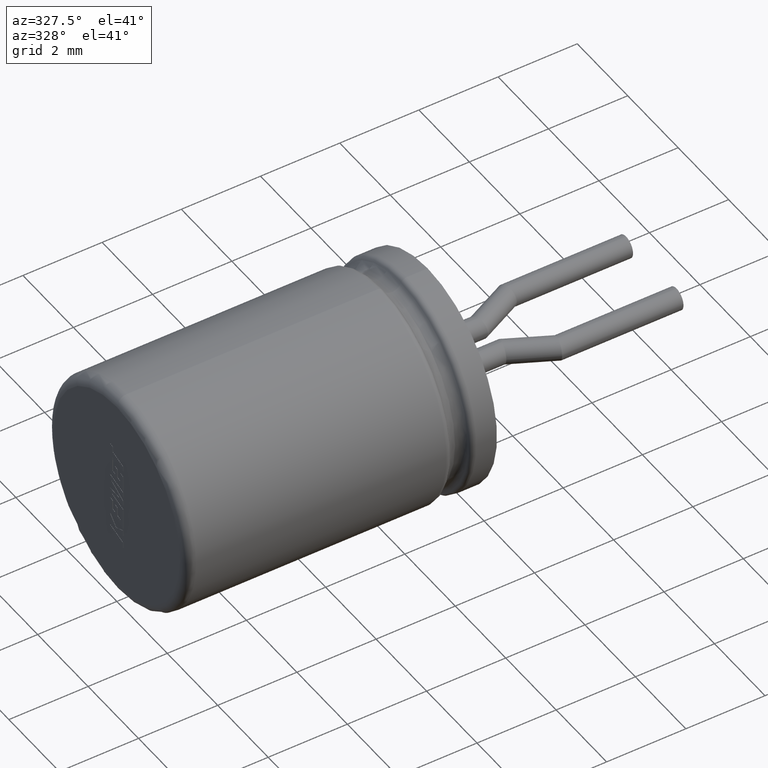
[diagram: clean part render]
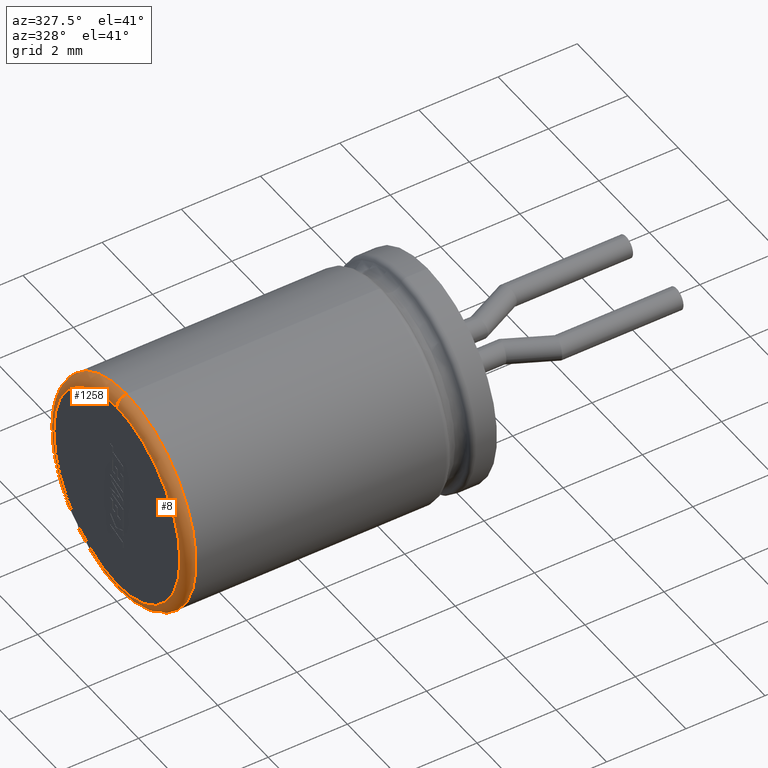
[diagram: same view with one multi-face feature highlighted, each face labeled with its STEP entity id]
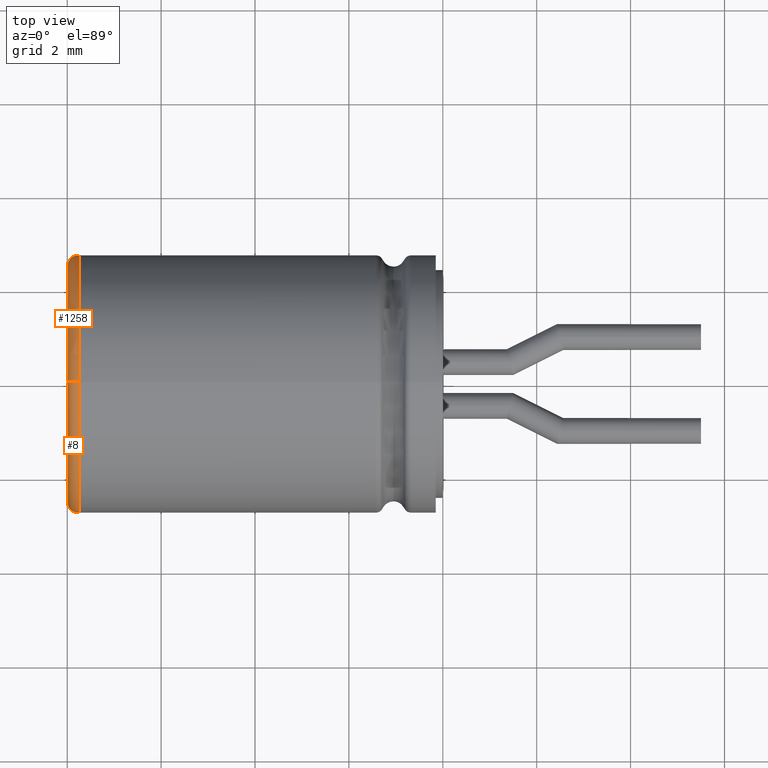
[diagram: same view with one multi-face feature highlighted, each face labeled with its STEP entity id]
A machine part, auxiliary view. The highlighted faces form ONE feature: a constant-radius fillet chain: 2 tangent blend faces with common blend radius 0.25 mm. The faces share edges in the B-rep.
A second angle (top view) of the same feature is appended — it is thin or edge-on in the first view.
Their STEP definitions:
[1] entity #8 (Torus):
#8 = ADVANCED_FACE ( 'NONE', ( #1173 ), #2960, .T. ) ;
#74 = AXIS2_PLACEMENT_3D ( 'NONE', #1480, #529, #2745 ) ;
#165 = ORIENTED_EDGE ( 'NONE', *, *, #2584, .T. ) ;
#405 = AXIS2_PLACEMENT_3D ( 'NONE', #1797, #3381, #3073 ) ;
#412 = VERTEX_POINT ( 'NONE', #3397 ) ;
#488 = DIRECTION ( 'NONE',  ( -1.000000000000000000, -0.0000000000000000000, -0.0000000000000000000 ) ) ;
#519 = DIRECTION ( 'NONE',  ( 0.0000000000000000000, 0.0000000000000000000, -1.000000000000000000 ) ) ;
#529 = DIRECTION ( 'NONE',  ( 1.000000000000000000, 0.0000000000000000000, 0.0000000000000000000 ) ) ;
#531 = DIRECTION ( 'NONE',  ( 1.000000000000000000, 0.0000000000000000000, 0.0000000000000000000 ) ) ;
#563 = CARTESIAN_POINT ( 'NONE',  ( 0.2500000000000002200, 3.061616997868382600E-016, 2.499999999999999600 ) ) ;
#592 = VERTEX_POINT ( 'NONE', #1295 ) ;
#700 = CARTESIAN_POINT ( 'NONE',  ( 0.0000000000000000000, 3.214697847761801600E-016, 2.499999999999999600 ) ) ;
#711 = ORIENTED_EDGE ( 'NONE', *, *, #1222, .F. ) ;
#771 = AXIS2_PLACEMENT_3D ( 'NONE', #2118, #531, #4019 ) ;
#1173 = FACE_OUTER_BOUND ( 'NONE', #1682, .T. ) ;
#1190 = DIRECTION ( 'NONE',  ( 0.0000000000000000000, 1.000000000000000000, -1.224646799147353200E-016 ) ) ;
#1222 = EDGE_CURVE ( 'NONE', #1578, #3449, #3008, .T. ) ;
#1239 = CIRCLE ( 'NONE', #405, 0.2500000000000002200 ) ;
#1269 = CIRCLE ( 'NONE', #2261, 0.2500000000000002200 ) ;
#1295 = CARTESIAN_POINT ( 'NONE',  ( 0.2500000000000002200, 0.0000000000000000000, 2.750000000000000000 ) ) ;
#1480 = CARTESIAN_POINT ( 'NONE',  ( 0.2500000000000002200, 0.0000000000000000000, 0.0000000000000000000 ) ) ;
#1578 = VERTEX_POINT ( 'NONE', #2590 ) ;
#1682 = EDGE_LOOP ( 'NONE', ( #2784, #711, #165, #1939 ) ) ;
#1797 = CARTESIAN_POINT ( 'NONE',  ( 0.2500000000000002200, 0.0000000000000000000, -2.499999999999999600 ) ) ;
#1939 = ORIENTED_EDGE ( 'NONE', *, *, #2357, .F. ) ;
#2118 = CARTESIAN_POINT ( 'NONE',  ( 0.2500000000000002200, 0.0000000000000000000, 0.0000000000000000000 ) ) ;
#2212 = DIRECTION ( 'NONE',  ( 0.0000000000000000000, 1.224646799147351500E-016, 1.000000000000000000 ) ) ;
#2241 = CIRCLE ( 'NONE', #771, 2.750000000000000000 ) ;
#2261 = AXIS2_PLACEMENT_3D ( 'NONE', #563, #1190, #2212 ) ;
#2357 = EDGE_CURVE ( 'NONE', #592, #412, #2241, .T. ) ;
#2584 = EDGE_CURVE ( 'NONE', #1578, #412, #1239, .T. ) ;
#2590 = CARTESIAN_POINT ( 'NONE',  ( 0.0000000000000000000, 0.0000000000000000000, -2.499999999999999600 ) ) ;
#2703 = AXIS2_PLACEMENT_3D ( 'NONE', #3992, #488, #519 ) ;
#2745 = DIRECTION ( 'NONE',  ( 0.0000000000000000000, 0.0000000000000000000, -1.000000000000000000 ) ) ;
#2784 = ORIENTED_EDGE ( 'NONE', *, *, #3272, .F. ) ;
#2960 = TOROIDAL_SURFACE ( 'NONE', #74, 2.499999999999999600, 0.2500000000000000000 ) ;
#3008 = CIRCLE ( 'NONE', #2703, 2.499999999999999600 ) ;
#3073 = DIRECTION ( 'NONE',  ( 0.0000000000000000000, 0.0000000000000000000, -1.000000000000000000 ) ) ;
#3272 = EDGE_CURVE ( 'NONE', #3449, #592, #1269, .T. ) ;
#3381 = DIRECTION ( 'NONE',  ( 0.0000000000000000000, -1.000000000000000000, 0.0000000000000000000 ) ) ;
#3397 = CARTESIAN_POINT ( 'NONE',  ( 0.2500000000000002200, 3.367778697655221000E-016, -2.750000000000000000 ) ) ;
#3449 = VERTEX_POINT ( 'NONE', #700 ) ;
#3992 = CARTESIAN_POINT ( 'NONE',  ( 0.0000000000000000000, 0.0000000000000000000, 0.0000000000000000000 ) ) ;
#4019 = DIRECTION ( 'NONE',  ( 0.0000000000000000000, 0.0000000000000000000, -1.000000000000000000 ) ) ;
[2] entity #1258 (Torus):
#405 = AXIS2_PLACEMENT_3D ( 'NONE', #1797, #3381, #3073 ) ;
#412 = VERTEX_POINT ( 'NONE', #3397 ) ;
#475 = AXIS2_PLACEMENT_3D ( 'NONE', #1681, #1978, #3252 ) ;
#496 = ORIENTED_EDGE ( 'NONE', *, *, #3566, .F. ) ;
#563 = CARTESIAN_POINT ( 'NONE',  ( 0.2500000000000002200, 3.061616997868382600E-016, 2.499999999999999600 ) ) ;
#592 = VERTEX_POINT ( 'NONE', #1295 ) ;
#700 = CARTESIAN_POINT ( 'NONE',  ( 0.0000000000000000000, 3.214697847761801600E-016, 2.499999999999999600 ) ) ;
#1094 = DIRECTION ( 'NONE',  ( 0.0000000000000000000, 0.0000000000000000000, -1.000000000000000000 ) ) ;
#1190 = DIRECTION ( 'NONE',  ( 0.0000000000000000000, 1.000000000000000000, -1.224646799147353200E-016 ) ) ;
#1239 = CIRCLE ( 'NONE', #405, 0.2500000000000002200 ) ;
#1258 = ADVANCED_FACE ( 'NONE', ( #1674 ), #4088, .T. ) ;
#1269 = CIRCLE ( 'NONE', #2261, 0.2500000000000002200 ) ;
#1295 = CARTESIAN_POINT ( 'NONE',  ( 0.2500000000000002200, 0.0000000000000000000, 2.750000000000000000 ) ) ;
#1379 = ORIENTED_EDGE ( 'NONE', *, *, #2584, .F. ) ;
#1578 = VERTEX_POINT ( 'NONE', #2590 ) ;
#1674 = FACE_OUTER_BOUND ( 'NONE', #2474, .T. ) ;
#1681 = CARTESIAN_POINT ( 'NONE',  ( 0.2500000000000002200, 0.0000000000000000000, 0.0000000000000000000 ) ) ;
#1728 = DIRECTION ( 'NONE',  ( -1.000000000000000000, -0.0000000000000000000, -0.0000000000000000000 ) ) ;
#1797 = CARTESIAN_POINT ( 'NONE',  ( 0.2500000000000002200, 0.0000000000000000000, -2.499999999999999600 ) ) ;
#1970 = ORIENTED_EDGE ( 'NONE', *, *, #3272, .T. ) ;
#1978 = DIRECTION ( 'NONE',  ( 1.000000000000000000, 0.0000000000000000000, 0.0000000000000000000 ) ) ;
#2212 = DIRECTION ( 'NONE',  ( 0.0000000000000000000, 1.224646799147351500E-016, 1.000000000000000000 ) ) ;
#2242 = AXIS2_PLACEMENT_3D ( 'NONE', #3629, #1728, #1094 ) ;
#2261 = AXIS2_PLACEMENT_3D ( 'NONE', #563, #1190, #2212 ) ;
#2474 = EDGE_LOOP ( 'NONE', ( #496, #1970, #3752, #1379 ) ) ;
#2584 = EDGE_CURVE ( 'NONE', #1578, #412, #1239, .T. ) ;
#2590 = CARTESIAN_POINT ( 'NONE',  ( 0.0000000000000000000, 0.0000000000000000000, -2.499999999999999600 ) ) ;
#3073 = DIRECTION ( 'NONE',  ( 0.0000000000000000000, 0.0000000000000000000, -1.000000000000000000 ) ) ;
#3102 = CARTESIAN_POINT ( 'NONE',  ( 0.2500000000000002200, 0.0000000000000000000, 0.0000000000000000000 ) ) ;
#3147 = CIRCLE ( 'NONE', #475, 2.750000000000000000 ) ;
#3252 = DIRECTION ( 'NONE',  ( 0.0000000000000000000, 0.0000000000000000000, -1.000000000000000000 ) ) ;
#3272 = EDGE_CURVE ( 'NONE', #3449, #592, #1269, .T. ) ;
#3381 = DIRECTION ( 'NONE',  ( 0.0000000000000000000, -1.000000000000000000, 0.0000000000000000000 ) ) ;
#3397 = CARTESIAN_POINT ( 'NONE',  ( 0.2500000000000002200, 3.367778697655221000E-016, -2.750000000000000000 ) ) ;
#3449 = VERTEX_POINT ( 'NONE', #700 ) ;
#3566 = EDGE_CURVE ( 'NONE', #3449, #1578, #3784, .T. ) ;
#3595 = AXIS2_PLACEMENT_3D ( 'NONE', #3102, #4035, #3735 ) ;
#3629 = CARTESIAN_POINT ( 'NONE',  ( 0.0000000000000000000, 0.0000000000000000000, 0.0000000000000000000 ) ) ;
#3735 = DIRECTION ( 'NONE',  ( 0.0000000000000000000, 0.0000000000000000000, -1.000000000000000000 ) ) ;
#3752 = ORIENTED_EDGE ( 'NONE', *, *, #4087, .F. ) ;
#3784 = CIRCLE ( 'NONE', #2242, 2.499999999999999600 ) ;
#4035 = DIRECTION ( 'NONE',  ( 1.000000000000000000, 0.0000000000000000000, 0.0000000000000000000 ) ) ;
#4087 = EDGE_CURVE ( 'NONE', #412, #592, #3147, .T. ) ;
#4088 = TOROIDAL_SURFACE ( 'NONE', #3595, 2.499999999999999600, 0.2500000000000000000 ) ;